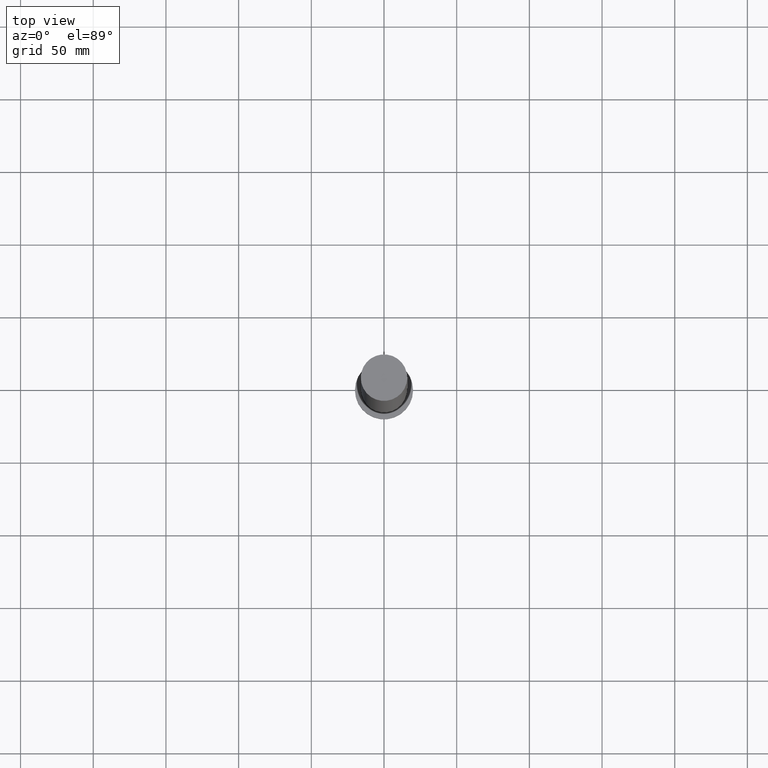
[diagram: clean part render]
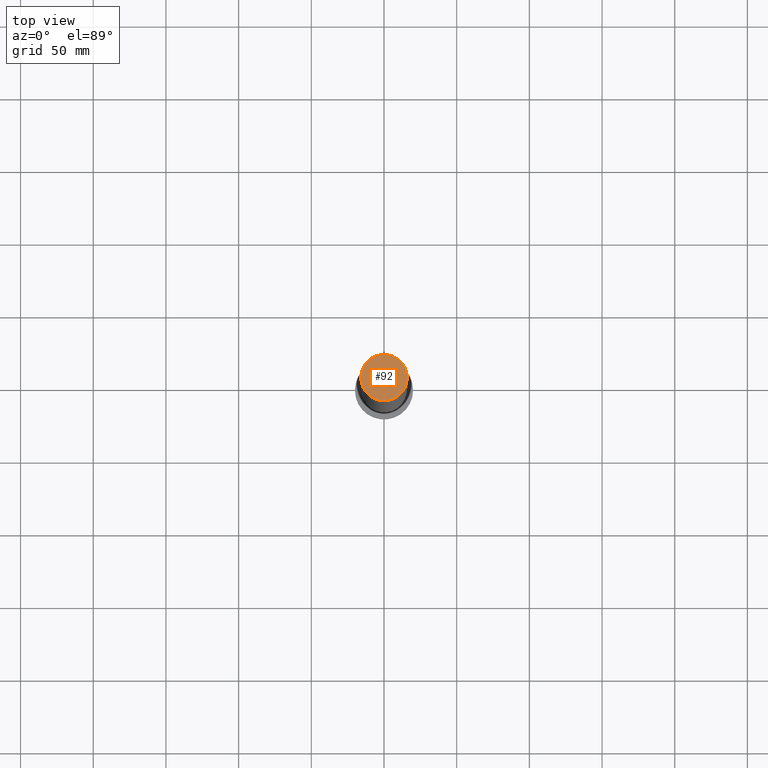
[diagram: same view with one face highlighted and labeled with its STEP entity id]
A machine part, top view. The second image highlights one B-rep face of the part: STEP entity #92.
In plain terms, the highlighted planar face has unit normal (0, 0, 1).
Its self-contained STEP definition (entity closure, byte-faithful):
#14 = CIRCLE ( 'NONE', #230, 16.00000000000000000 ) ;
#21 = CARTESIAN_POINT ( 'NONE',  ( 16.00000000000000000, 1.959434878635765131E-15, 500.0000000000000000 ) ) ;
#31 = EDGE_CURVE ( 'NONE', #47, #238, #150, .T. ) ;
#32 = EDGE_LOOP ( 'NONE', ( #234, #177 ) ) ;
#38 = DIRECTION ( 'NONE',  ( 1.000000000000000000, 0.000000000000000000, 0.000000000000000000 ) ) ;
#47 = VERTEX_POINT ( 'NONE', #142 ) ;
#50 = DIRECTION ( 'NONE',  ( 1.000000000000000000, 0.000000000000000000, 0.000000000000000000 ) ) ;
#56 = DIRECTION ( 'NONE',  ( 1.000000000000000000, 0.000000000000000000, -0.000000000000000000 ) ) ;
#67 = AXIS2_PLACEMENT_3D ( 'NONE', #228, #118, #38 ) ;
#76 = FACE_OUTER_BOUND ( 'NONE', #32, .T. ) ;
#92 = ADVANCED_FACE ( 'NONE', ( #76 ), #227, .T. ) ;
#118 = DIRECTION ( 'NONE',  ( 0.000000000000000000, 0.000000000000000000, 1.000000000000000000 ) ) ;
#142 = CARTESIAN_POINT ( 'NONE',  ( -16.00000000000000000, 0.000000000000000000, 500.0000000000000000 ) ) ;
#150 = CIRCLE ( 'NONE', #67, 16.00000000000000000 ) ;
#160 = DIRECTION ( 'NONE',  ( 0.000000000000000000, 0.000000000000000000, 1.000000000000000000 ) ) ;
#176 = CARTESIAN_POINT ( 'NONE',  ( 0.000000000000000000, 0.000000000000000000, 500.0000000000000000 ) ) ;
#177 = ORIENTED_EDGE ( 'NONE', *, *, #213, .T. ) ;
#213 = EDGE_CURVE ( 'NONE', #238, #47, #14, .T. ) ;
#227 = PLANE ( 'NONE',  #242 ) ;
#228 = CARTESIAN_POINT ( 'NONE',  ( 0.000000000000000000, 0.000000000000000000, 500.0000000000000000 ) ) ;
#230 = AXIS2_PLACEMENT_3D ( 'NONE', #176, #235, #50 ) ;
#234 = ORIENTED_EDGE ( 'NONE', *, *, #31, .T. ) ;
#235 = DIRECTION ( 'NONE',  ( 0.000000000000000000, 0.000000000000000000, 1.000000000000000000 ) ) ;
#238 = VERTEX_POINT ( 'NONE', #21 ) ;
#242 = AXIS2_PLACEMENT_3D ( 'NONE', #243, #160, #56 ) ;
#243 = CARTESIAN_POINT ( 'NONE',  ( 0.000000000000000000, 0.000000000000000000, 500.0000000000000000 ) ) ;